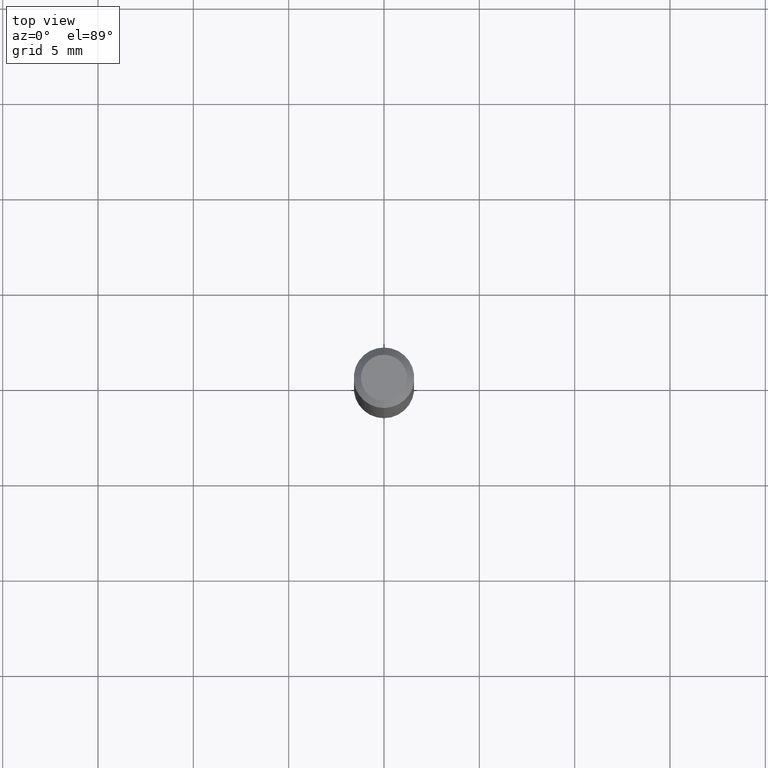
[diagram: clean part render]
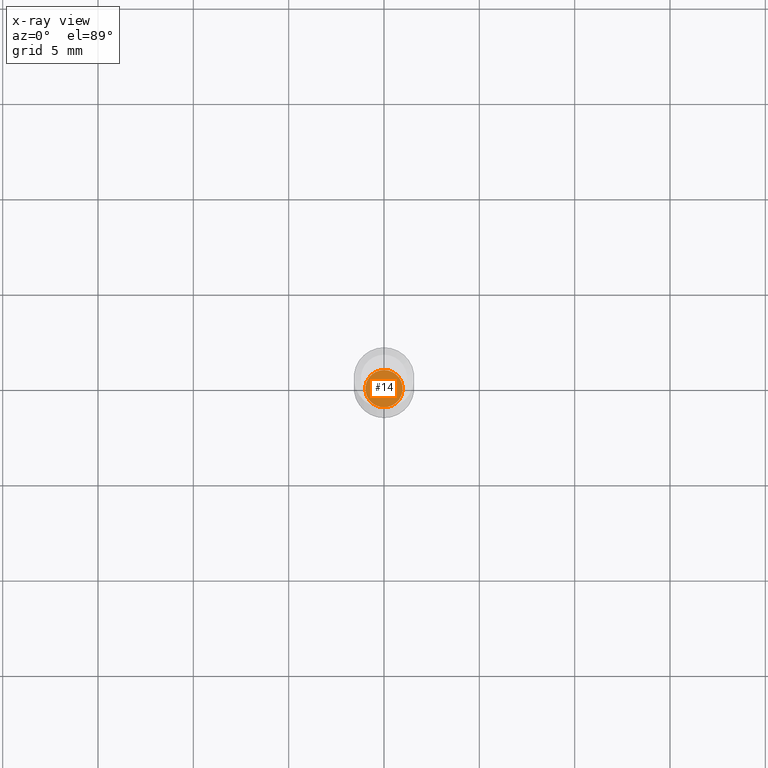
[diagram: x-ray — body ghosted, one internal face saturated and labeled with its STEP entity id]
A machine part, top view, then the same camera in x-ray: the body is ghosted and one INTERNAL B-rep face — a face not visible from any outside direction — is saturated and labeled: STEP entity #14.
In plain terms, the highlighted planar face has unit normal (-0, 0, 1).
Its self-contained STEP definition (entity closure, byte-faithful):
#14 = ADVANCED_FACE ( 'NONE', ( #62 ), #496, .F. ) ;
#15 = CARTESIAN_POINT ( 'NONE',  ( 2.756905814749515687E-16, 0.03854999999999541432, -1.313000000000000389 ) ) ;
#25 = DIRECTION ( 'NONE',  ( -6.982962677686265922E-15, -1.000000000000000000, 3.491128430402830124E-15 ) ) ;
#62 = FACE_OUTER_BOUND ( 'NONE', #387, .T. ) ;
#124 = ORIENTED_EDGE ( 'NONE', *, *, #375, .F. ) ;
#127 = DIRECTION ( 'NONE',  ( -2.445715240831873182E-29, 3.491128430402830124E-15, 1.000000000000000000 ) ) ;
#138 = DIRECTION ( 'NONE',  ( -2.445715240831873182E-29, 3.491128430402830124E-15, 1.000000000000000000 ) ) ;
#141 = CARTESIAN_POINT ( 'NONE',  ( 3.211224111212249912E-29, -4.583851629118917536E-15, -1.313000000000000389 ) ) ;
#155 = CIRCLE ( 'NONE', #199, 0.03855000000000000093 ) ;
#184 = CIRCLE ( 'NONE', #478, 0.03855000000000000093 ) ;
#199 = AXIS2_PLACEMENT_3D ( 'NONE', #402, #127, #437 ) ;
#215 = CARTESIAN_POINT ( 'NONE',  ( 3.211224111212249912E-29, -4.583851629118917536E-15, -1.313000000000000389 ) ) ;
#218 = DIRECTION ( 'NONE',  ( -2.445715240831872622E-29, 3.491128430402830124E-15, 1.000000000000000000 ) ) ;
#242 = ORIENTED_EDGE ( 'NONE', *, *, #301, .F. ) ;
#301 = EDGE_CURVE ( 'NONE', #422, #500, #155, .T. ) ;
#340 = AXIS2_PLACEMENT_3D ( 'NONE', #141, #218, #25 ) ;
#343 = CARTESIAN_POINT ( 'NONE',  ( -2.691932112247734171E-16, -0.03855000000000458060, -1.313000000000000389 ) ) ;
#375 = EDGE_CURVE ( 'NONE', #500, #422, #184, .T. ) ;
#377 = DIRECTION ( 'NONE',  ( -6.982962677686265133E-15, -1.000000000000000000, 0.000000000000000000 ) ) ;
#387 = EDGE_LOOP ( 'NONE', ( #124, #242 ) ) ;
#402 = CARTESIAN_POINT ( 'NONE',  ( 3.211224111212249912E-29, -4.583851629118917536E-15, -1.313000000000000389 ) ) ;
#422 = VERTEX_POINT ( 'NONE', #15 ) ;
#437 = DIRECTION ( 'NONE',  ( -6.982962677686265133E-15, -1.000000000000000000, 0.000000000000000000 ) ) ;
#478 = AXIS2_PLACEMENT_3D ( 'NONE', #215, #138, #377 ) ;
#496 = PLANE ( 'NONE',  #340 ) ;
#500 = VERTEX_POINT ( 'NONE', #343 ) ;